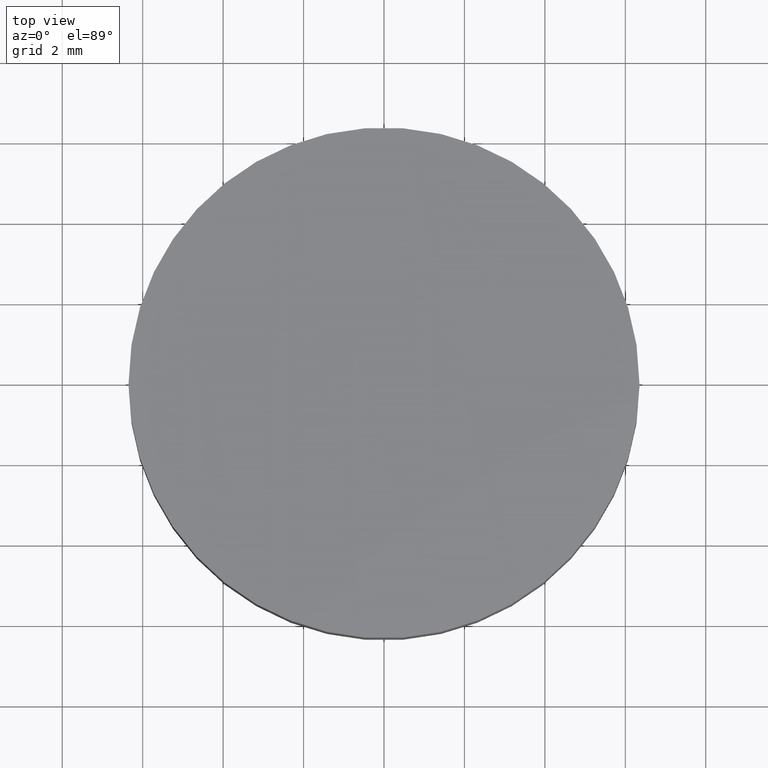
[diagram: clean part render]
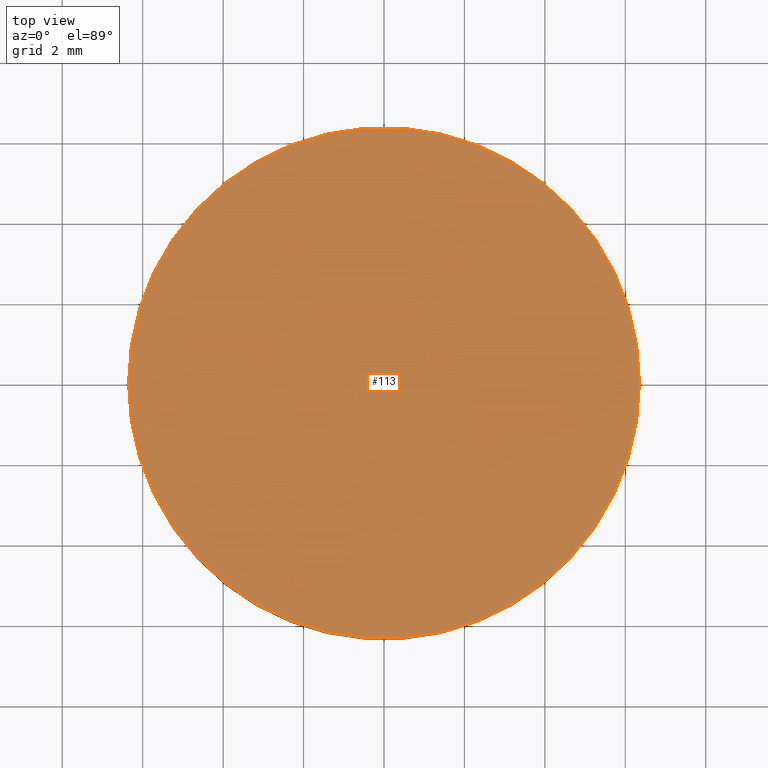
[diagram: same view with one face highlighted and labeled with its STEP entity id]
A machine part, top view. The second image highlights one B-rep face of the part: STEP entity #113.
In plain terms, the highlighted planar face has unit normal (0, 0, 1).
Its self-contained STEP definition (entity closure, byte-faithful):
#2 = EDGE_CURVE ( 'NONE', #97, #31, #70, .T. ) ;
#6 = FACE_OUTER_BOUND ( 'NONE', #8, .T. ) ;
#8 = EDGE_LOOP ( 'NONE', ( #41, #100 ) ) ;
#21 = DIRECTION ( 'NONE',  ( 1.000000000000000000, 0.0000000000000000000, 0.0000000000000000000 ) ) ;
#30 = CARTESIAN_POINT ( 'NONE',  ( 6.349999999999999600, 7.776507174585692200E-016, 3.000000000000000000 ) ) ;
#31 = VERTEX_POINT ( 'NONE', #134 ) ;
#41 = ORIENTED_EDGE ( 'NONE', *, *, #99, .T. ) ;
#44 = CARTESIAN_POINT ( 'NONE',  ( 0.0000000000000000000, 0.0000000000000000000, 3.000000000000000000 ) ) ;
#45 = AXIS2_PLACEMENT_3D ( 'NONE', #44, #72, #60 ) ;
#46 = DIRECTION ( 'NONE',  ( 0.0000000000000000000, 0.0000000000000000000, 1.000000000000000000 ) ) ;
#47 = DIRECTION ( 'NONE',  ( 0.0000000000000000000, 0.0000000000000000000, 1.000000000000000000 ) ) ;
#60 = DIRECTION ( 'NONE',  ( 1.000000000000000000, 0.0000000000000000000, -0.0000000000000000000 ) ) ;
#70 = CIRCLE ( 'NONE', #73, 6.349999999999999600 ) ;
#72 = DIRECTION ( 'NONE',  ( 0.0000000000000000000, 0.0000000000000000000, 1.000000000000000000 ) ) ;
#73 = AXIS2_PLACEMENT_3D ( 'NONE', #84, #47, #130 ) ;
#84 = CARTESIAN_POINT ( 'NONE',  ( 0.0000000000000000000, 0.0000000000000000000, 3.000000000000000000 ) ) ;
#94 = CARTESIAN_POINT ( 'NONE',  ( 0.0000000000000000000, 0.0000000000000000000, 3.000000000000000000 ) ) ;
#97 = VERTEX_POINT ( 'NONE', #30 ) ;
#99 = EDGE_CURVE ( 'NONE', #31, #97, #103, .T. ) ;
#100 = ORIENTED_EDGE ( 'NONE', *, *, #2, .T. ) ;
#103 = CIRCLE ( 'NONE', #114, 6.349999999999999600 ) ;
#113 = ADVANCED_FACE ( 'NONE', ( #6 ), #115, .T. ) ;
#114 = AXIS2_PLACEMENT_3D ( 'NONE', #94, #46, #21 ) ;
#115 = PLANE ( 'NONE',  #45 ) ;
#130 = DIRECTION ( 'NONE',  ( 1.000000000000000000, 0.0000000000000000000, 0.0000000000000000000 ) ) ;
#134 = CARTESIAN_POINT ( 'NONE',  ( -6.349999999999999600, 0.0000000000000000000, 3.000000000000000000 ) ) ;